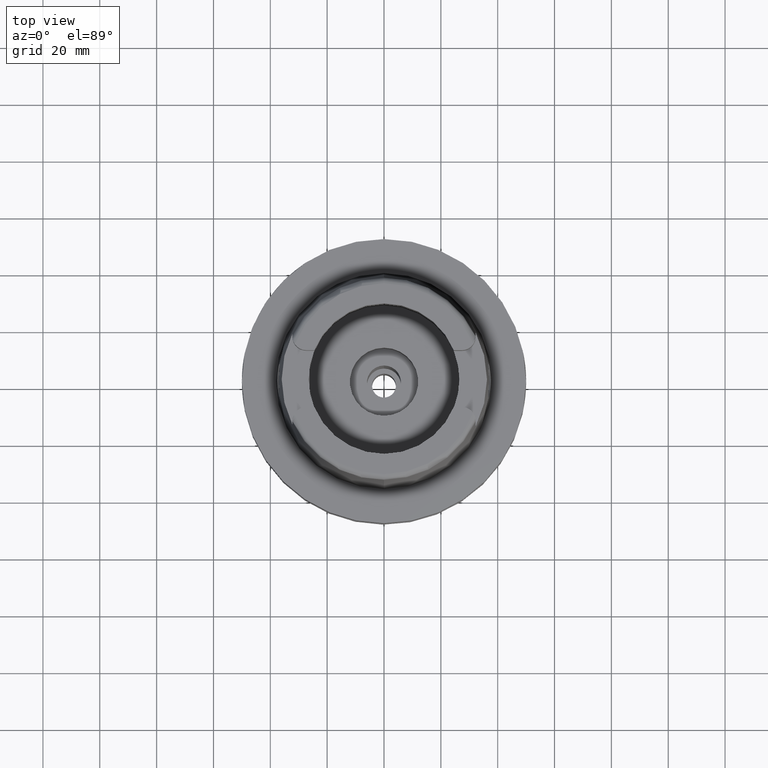
[diagram: clean part render]
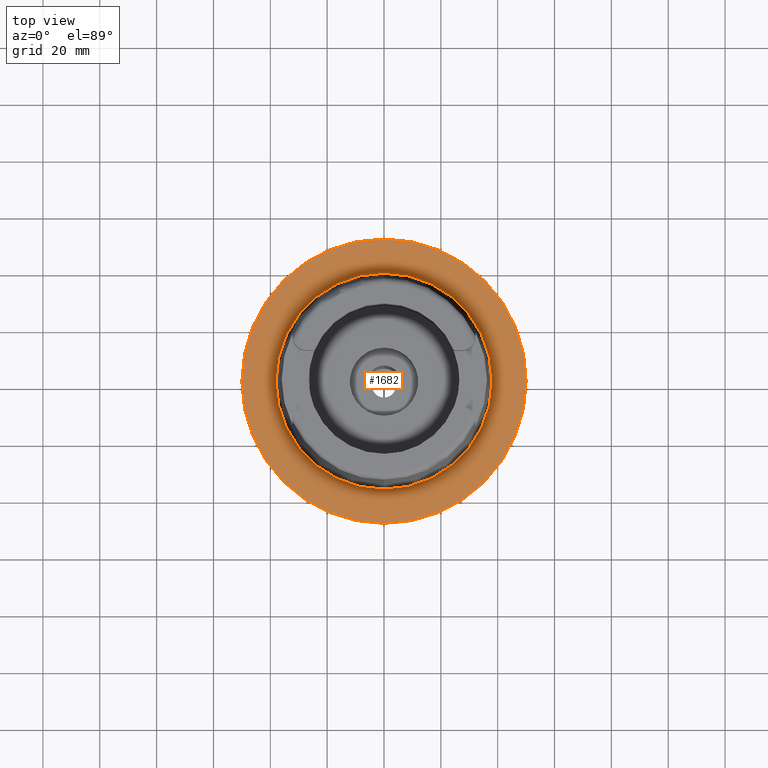
[diagram: same view with one face highlighted and labeled with its STEP entity id]
A machine part, top view. The second image highlights one B-rep face of the part: STEP entity #1682.
In plain terms, the highlighted planar face has unit normal (0, 0, 1).
Its self-contained STEP definition (entity closure, byte-faithful):
#98 = DIRECTION ( 'NONE',  ( 0.0000000000000000000, 0.0000000000000000000, -1.000000000000000000 ) ) ;
#299 = ORIENTED_EDGE ( 'NONE', *, *, #4255, .F. ) ;
#391 = FACE_OUTER_BOUND ( 'NONE', #4932, .T. ) ;
#608 = VERTEX_POINT ( 'NONE', #5413 ) ;
#717 = VERTEX_POINT ( 'NONE', #4674 ) ;
#787 = DIRECTION ( 'NONE',  ( 1.000000000000000000, 0.0000000000000000000, 0.0000000000000000000 ) ) ;
#845 = EDGE_CURVE ( 'NONE', #3885, #911, #4179, .T. ) ;
#911 = VERTEX_POINT ( 'NONE', #3024 ) ;
#1052 = EDGE_CURVE ( 'NONE', #608, #717, #2111, .T. ) ;
#1616 = DIRECTION ( 'NONE',  ( 0.0000000000000000000, 1.000000000000000000, 0.0000000000000000000 ) ) ;
#1647 = AXIS2_PLACEMENT_3D ( 'NONE', #4675, #3912, #787 ) ;
#1682 = ADVANCED_FACE ( 'NONE', ( #391, #1708 ), #2124, .T. ) ;
#1708 = FACE_BOUND ( 'NONE', #2356, .T. ) ;
#2066 = AXIS2_PLACEMENT_3D ( 'NONE', #2474, #2558, #4638 ) ;
#2083 = DIRECTION ( 'NONE',  ( 0.0000000000000000000, 0.0000000000000000000, -1.000000000000000000 ) ) ;
#2111 = CIRCLE ( 'NONE', #3639, 50.00000000000000000 ) ;
#2124 = PLANE ( 'NONE',  #1647 ) ;
#2356 = EDGE_LOOP ( 'NONE', ( #3838, #3996 ) ) ;
#2474 = CARTESIAN_POINT ( 'NONE',  ( 0.0000000000000000000, 0.0000000000000000000, 1.023181539494999863E-12 ) ) ;
#2551 = AXIS2_PLACEMENT_3D ( 'NONE', #3271, #4995, #1616 ) ;
#2558 = DIRECTION ( 'NONE',  ( 0.0000000000000000000, 0.0000000000000000000, 1.000000000000000000 ) ) ;
#2664 = CARTESIAN_POINT ( 'NONE',  ( 0.0000000000000000000, 0.0000000000000000000, 1.136868377215999875E-13 ) ) ;
#2862 = CIRCLE ( 'NONE', #2066, 38.00001658251999714 ) ;
#3024 = CARTESIAN_POINT ( 'NONE',  ( 0.0000000000000000000, -38.00001658251999714, 6.821210263297000155E-13 ) ) ;
#3259 = ORIENTED_EDGE ( 'NONE', *, *, #1052, .F. ) ;
#3271 = CARTESIAN_POINT ( 'NONE',  ( 0.0000000000000000000, 0.0000000000000000000, 1.023181539494999863E-12 ) ) ;
#3426 = AXIS2_PLACEMENT_3D ( 'NONE', #2664, #98, #3474 ) ;
#3474 = DIRECTION ( 'NONE',  ( 0.0000000000000000000, 1.000000000000000000, 0.0000000000000000000 ) ) ;
#3639 = AXIS2_PLACEMENT_3D ( 'NONE', #5130, #2083, #5555 ) ;
#3750 = EDGE_CURVE ( 'NONE', #911, #3885, #2862, .T. ) ;
#3838 = ORIENTED_EDGE ( 'NONE', *, *, #845, .F. ) ;
#3885 = VERTEX_POINT ( 'NONE', #4178 ) ;
#3912 = DIRECTION ( 'NONE',  ( 0.0000000000000000000, 0.0000000000000000000, 1.000000000000000000 ) ) ;
#3996 = ORIENTED_EDGE ( 'NONE', *, *, #3750, .F. ) ;
#4178 = CARTESIAN_POINT ( 'NONE',  ( 0.0000000000000000000, 38.00001658251999714, 1.023181539494999863E-12 ) ) ;
#4179 = CIRCLE ( 'NONE', #2551, 38.00001658251999714 ) ;
#4255 = EDGE_CURVE ( 'NONE', #717, #608, #5486, .T. ) ;
#4638 = DIRECTION ( 'NONE',  ( 0.0000000000000000000, -1.000000000000000000, 0.0000000000000000000 ) ) ;
#4674 = CARTESIAN_POINT ( 'NONE',  ( 0.0000000000000000000, 50.00000000000000000, 7.579122514774000189E-14 ) ) ;
#4675 = CARTESIAN_POINT ( 'NONE',  ( 0.0000000000000000000, 0.0000000000000000000, 0.0000000000000000000 ) ) ;
#4932 = EDGE_LOOP ( 'NONE', ( #299, #3259 ) ) ;
#4995 = DIRECTION ( 'NONE',  ( 0.0000000000000000000, 0.0000000000000000000, 1.000000000000000000 ) ) ;
#5130 = CARTESIAN_POINT ( 'NONE',  ( 0.0000000000000000000, 0.0000000000000000000, 1.136868377215999875E-13 ) ) ;
#5413 = CARTESIAN_POINT ( 'NONE',  ( 0.0000000000000000000, -50.00000000000000000, 1.136868377215999875E-13 ) ) ;
#5486 = CIRCLE ( 'NONE', #3426, 50.00000000000000000 ) ;
#5555 = DIRECTION ( 'NONE',  ( 0.0000000000000000000, -1.000000000000000000, 0.0000000000000000000 ) ) ;